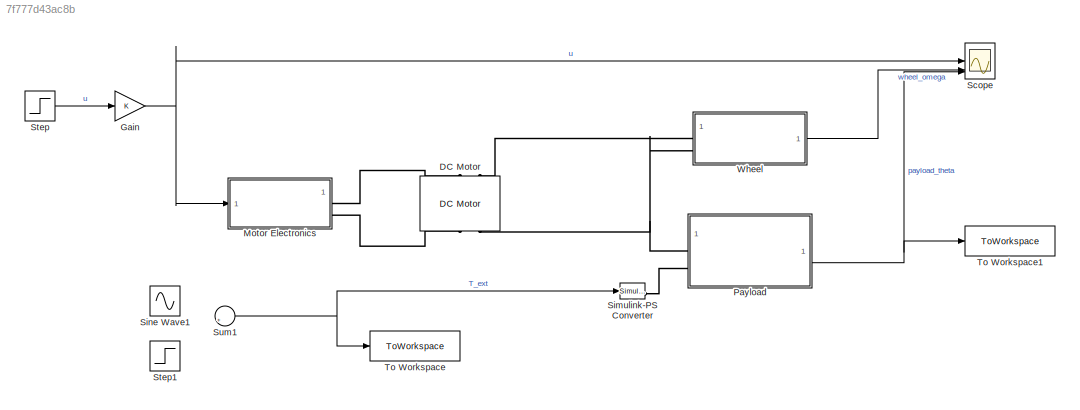
MODEL slx_7f777d43ac8b
KIND model
CONFIG AbsTol = 1e-3
CONFIG EnableMultiTasking = on
CONFIG FixedStep = auto
CONFIG MaxStep = auto
CONFIG MinStep = auto
CONFIG RelTol = 1e-3
CONFIG SampleTimeConstraint = Unconstrained
CONFIG SolverName = VariableStepAuto
CONFIG StartTime = 0.0
CONFIG StopTime = 20
BLOCK [Reference] DC Motor  REF=ee_lib/Electromechanical/Brushed Motors/DC Motor
  NameLocation = left
  SourceBlock = ee_lib/Electromechanical/Brushed Motors/DC Motor
  SourceType = DC Motor
BLOCK [Gain] Gain
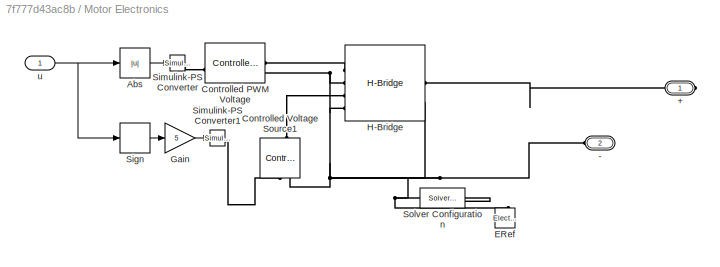
BLOCK [SubSystem] Motor Electronics
BLOCK [PMIOPort] Motor Electronics/+
  Side = Right
BLOCK [PMIOPort] Motor Electronics/-
  Port = 2
  Side = Right
BLOCK [Abs] Motor Electronics/Abs
  SaturateOnIntegerOverflow = off
BLOCK [Reference] Motor Electronics/Controlled PWM Voltage  REF=ee_lib/Integrated Circuits/Controlled PWM
Voltage
  SourceBlock = ee_lib/Integrated Circuits/Controlled PWM\nVoltage
  SourceType = Controlled PWM\nVoltage
BLOCK [Reference] Motor Electronics/Controlled Voltage Source1  REF=fl_lib/Electrical/Electrical Sources/Controlled Voltage
Source
  NameLocation = right
  SourceBlock = fl_lib/Electrical/Electrical Sources/Controlled Voltage\nSource
  SourceType = Controlled Voltage\nSource
BLOCK [Reference] Motor Electronics/ERef  REF=fl_lib/Electrical/Electrical Elements/Electrical Reference
  NameLocation = left
  SourceBlock = fl_lib/Electrical/Electrical Elements/Electrical Reference
  SourceType = Electrical Reference
BLOCK [Gain] Motor Electronics/Gain
  Gain = 5
BLOCK [Reference] Motor Electronics/H-Bridge  REF=ee_lib/Semiconductors &
Converters/Converters/H-Bridge
  SourceBlock = ee_lib/Semiconductors &\nConverters/Converters/H-Bridge
  SourceType = H-Bridge
BLOCK [Signum] Motor Electronics/Sign
BLOCK [Reference] Motor Electronics/Simulink-PS Converter  REF=nesl_utility/Simulink-PS
Converter
  SourceBlock = nesl_utility/Simulink-PS\nConverter
  SourceType = Simulink-PS\nConverter
BLOCK [Reference] Motor Electronics/Simulink-PS Converter1  REF=nesl_utility/Simulink-PS
Converter
  SourceBlock = nesl_utility/Simulink-PS\nConverter
  SourceType = Simulink-PS\nConverter
BLOCK [Reference] Motor Electronics/Solver Configuration  REF=nesl_utility/Solver
Configuration
  SourceBlock = nesl_utility/Solver\nConfiguration
  SourceType = Solver\nConfiguration
BLOCK [Inport] Motor Electronics/u
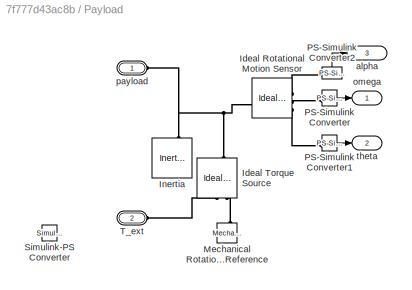
BLOCK [SubSystem] Payload
BLOCK [Reference] Payload/Ideal Rotational Motion Sensor  REF=fl_lib/Mechanical/Mechanical Sensors/Ideal Rotational
Motion Sensor
  SourceBlock = fl_lib/Mechanical/Mechanical Sensors/Ideal Rotational\nMotion Sensor
  SourceType = Ideal Rotational\nMotion Sensor
BLOCK [Reference] Payload/Ideal Torque Source  REF=fl_lib/Mechanical/Mechanical Sources/Ideal Torque Source
  NameLocation = right
  SourceBlock = fl_lib/Mechanical/Mechanical Sources/Ideal Torque Source
  SourceType = Ideal Torque Source
BLOCK [Reference] Payload/Inertia  REF=fl_lib/Mechanical/Rotational Elements/Inertia
  NameLocation = right
  SourceBlock = fl_lib/Mechanical/Rotational Elements/Inertia
  SourceType = Inertia
BLOCK [Reference] Payload/Mechanical Rotational Reference  REF=fl_lib/Mechanical/Rotational Elements/Mechanical
Rotational Reference
  NameLocation = right
  SourceBlock = fl_lib/Mechanical/Rotational Elements/Mechanical\nRotational Reference
  SourceType = Mechanical\nRotational Reference
BLOCK [Reference] Payload/PS-Simulink Converter  REF=nesl_utility/PS-Simulink
Converter
  SourceBlock = nesl_utility/PS-Simulink\nConverter
  SourceType = PS-Simulink\nConverter
BLOCK [Reference] Payload/PS-Simulink Converter1  REF=nesl_utility/PS-Simulink
Converter
  SourceBlock = nesl_utility/PS-Simulink\nConverter
  SourceType = PS-Simulink\nConverter
BLOCK [Reference] Payload/PS-Simulink Converter2  REF=nesl_utility/PS-Simulink
Converter
  SourceBlock = nesl_utility/PS-Simulink\nConverter
  SourceType = PS-Simulink\nConverter
BLOCK [Reference] Payload/Simulink-PS Converter  REF=nesl_utility/Simulink-PS
Converter
  SourceBlock = nesl_utility/Simulink-PS\nConverter
  SourceType = Simulink-PS\nConverter
BLOCK [PMIOPort] Payload/T_ext
  Port = 2
  Side = Left
BLOCK [Outport] Payload/alpha
  Port = 3
BLOCK [Outport] Payload/omega
BLOCK [PMIOPort] Payload/payload
  Side = Left
BLOCK [Outport] Payload/theta
  Port = 2
BLOCK [Scope] Scope
  Floating = off
  NumInputPorts = 4
  ScopeSpecificationString = Simulink.scopes.TimeScopeBlockCfg('CurrentConfiguration', extmgr.ConfigurationSet(extmgr.Configuration('Core','General UI',true),extmgr.Configuration('Core','Source UI',true),extmgr.Configuration('Sources','WiredSimulink',true),extmgr.Configuration('Visuals','Time Domain',true,'SerializedDisplays',{struct('MinYLimReal','-0.125','MaxYLimReal','1.125','YLabelReal','','MinYLimMag','0.00000','MaxYLimM...<+3874ch>
BLOCK [Reference] Simulink-PS Converter  REF=nesl_utility/Simulink-PS
Converter
  SourceBlock = nesl_utility/Simulink-PS\nConverter
  SourceType = Simulink-PS\nConverter
BLOCK [Sin] Sine Wave1
  Amplitude = 0.25
  Frequency = 6.28
  SampleTime = 0
BLOCK [Step] Step
  SampleTime = 0
BLOCK [Step] Step1
  SampleTime = 0
BLOCK [Sum] Sum1
  Inputs = |++
BLOCK [ToWorkspace] To Workspace
  FixptAsFi = on
  MaxDataPoints = inf
  SampleTime = -1
  SaveFormat = Timeseries
  VariableName = simout
BLOCK [ToWorkspace] To Workspace1
  FixptAsFi = on
  MaxDataPoints = inf
  SampleTime = -1
  SaveFormat = Timeseries
  VariableName = simout1
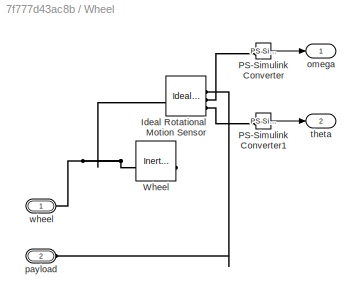
BLOCK [SubSystem] Wheel
BLOCK [Reference] Wheel/Ideal Rotational Motion Sensor  REF=fl_lib/Mechanical/Mechanical Sensors/Ideal Rotational
Motion Sensor
  SourceBlock = fl_lib/Mechanical/Mechanical Sensors/Ideal Rotational\nMotion Sensor
  SourceType = Ideal Rotational\nMotion Sensor
BLOCK [Reference] Wheel/PS-Simulink Converter  REF=nesl_utility/PS-Simulink
Converter
  SourceBlock = nesl_utility/PS-Simulink\nConverter
  SourceType = PS-Simulink\nConverter
BLOCK [Reference] Wheel/PS-Simulink Converter1  REF=nesl_utility/PS-Simulink
Converter
  SourceBlock = nesl_utility/PS-Simulink\nConverter
  SourceType = PS-Simulink\nConverter
BLOCK [Reference] Wheel/Wheel  REF=fl_lib/Mechanical/Rotational Elements/Inertia
  NameLocation = top
  SourceBlock = fl_lib/Mechanical/Rotational Elements/Inertia
  SourceType = Inertia
BLOCK [Outport] Wheel/omega
BLOCK [PMIOPort] Wheel/payload
  Port = 2
  Side = Left
BLOCK [Outport] Wheel/theta
  Port = 2
BLOCK [PMIOPort] Wheel/wheel
  Side = Left
NET Gain:1 -> Motor Electronics:1, Scope:1
LINE Motor Electronics/Abs:1 -> Motor Electronics/Simulink-PS Converter:1
LINE Motor Electronics/Gain:1 -> Motor Electronics/Simulink-PS Converter1:1
LINE Motor Electronics/Sign:1 -> Motor Electronics/Gain:1
NET Motor Electronics/u:1 -> Motor Electronics/Abs:1, Motor Electronics/Sign:1
LINE Payload/PS-Simulink Converter1:1 -> Payload/theta:1
LINE Payload/PS-Simulink Converter2:1 -> Payload/alpha:1
LINE Payload/PS-Simulink Converter:1 -> Payload/omega:1
NET Payload:2 -> Scope:4, To Workspace1:1
LINE Step:1 -> Gain:1
NET Sum1:1 -> Simulink-PS Converter:1, To Workspace:1
LINE Wheel/PS-Simulink Converter1:1 -> Wheel/theta:1
LINE Wheel/PS-Simulink Converter:1 -> Wheel/omega:1
LINE Wheel:1 -> Scope:3
PLINE DC Motor:LConn1 -- Motor Electronics:RConn1
PLINE DC Motor:LConn2 -- Wheel:LConn1
PLINE DC Motor:RConn1 -- Motor Electronics:RConn2
PNET net1: DC Motor:RConn2 -- Payload:LConn1 -- Wheel:LConn2
PLINE Motor Electronics/+:RConn1 -- Motor Electronics/H-Bridge:RConn1
PNET net2: Motor Electronics/-:RConn1 -- Motor Electronics/Controlled PWM Voltage:RConn2 -- Motor Electronics/Controlled Voltage Source1:RConn2 -- Motor Electronics/ERef:LConn1 -- Motor Electronics/H-Bridge:LConn2 -- Motor Electronics/H-Bridge:LConn4 -- Motor Electronics/H-Bridge:RConn2 -- Motor Electronics/Solver Configuration:RConn1
PLINE Motor Electronics/Controlled PWM Voltage:LConn1 -- Motor Electronics/Simulink-PS Converter:RConn1
PLINE Motor Electronics/Controlled PWM Voltage:RConn1 -- Motor Electronics/H-Bridge:LConn1
PLINE Motor Electronics/Controlled Voltage Source1:LConn1 -- Motor Electronics/H-Bridge:LConn3
PLINE Motor Electronics/Controlled Voltage Source1:RConn1 -- Motor Electronics/Simulink-PS Converter1:RConn1
PNET net3: Payload/Ideal Rotational Motion Sensor:LConn1 -- Payload/Ideal Torque Source:LConn1 -- Payload/Inertia:LConn1 -- Payload/payload:RConn1
PLINE Payload/Ideal Rotational Motion Sensor:RConn1 -- Payload/PS-Simulink Converter2:LConn1
PLINE Payload/Ideal Rotational Motion Sensor:RConn2 -- Payload/PS-Simulink Converter:LConn1
PLINE Payload/Ideal Rotational Motion Sensor:RConn3 -- Payload/PS-Simulink Converter1:LConn1
PLINE Payload/Ideal Torque Source:RConn1 -- Payload/T_ext:RConn1
PLINE Payload/Ideal Torque Source:RConn2 -- Payload/Mechanical Rotational Reference:LConn1
PLINE Payload:LConn2 -- Simulink-PS Converter:RConn1
PNET net4: Wheel/Ideal Rotational Motion Sensor:LConn1 -- Wheel/Wheel:LConn1 -- Wheel/wheel:RConn1
PLINE Wheel/Ideal Rotational Motion Sensor:RConn1 -- Wheel/payload:RConn1
PLINE Wheel/Ideal Rotational Motion Sensor:RConn2 -- Wheel/PS-Simulink Converter:LConn1
PLINE Wheel/Ideal Rotational Motion Sensor:RConn3 -- Wheel/PS-Simulink Converter1:LConn1
note: NET lines group one-source signal fan-out (src -> all destinations, sorted); 1:1 wires keep LINE; PNET lines group multi-terminal physical nets as a canonical sorted terminal list (undirected conserving connections); 2-terminal nets keep the pairwise PLINE form
